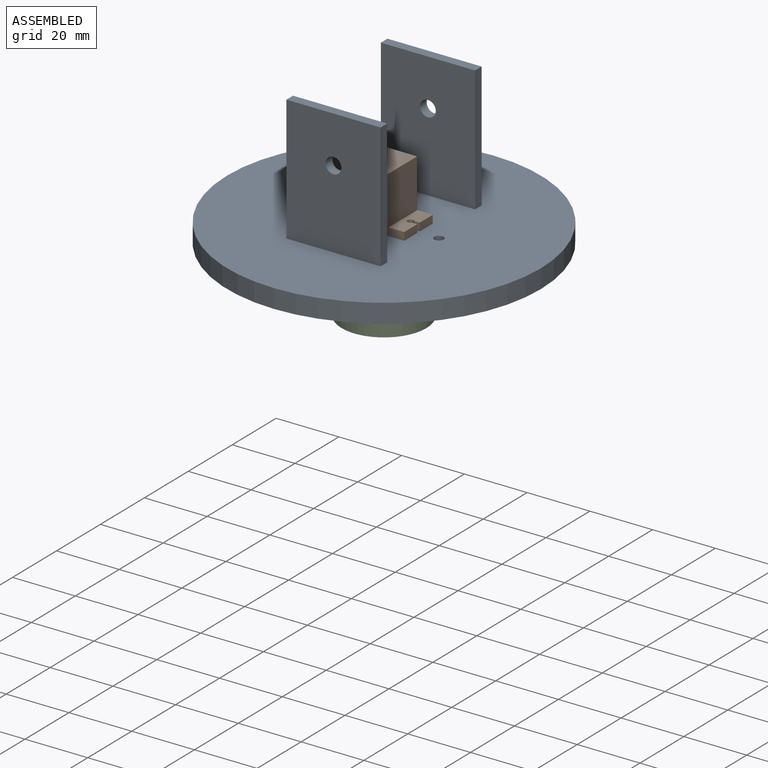
[diagram: assembled view]
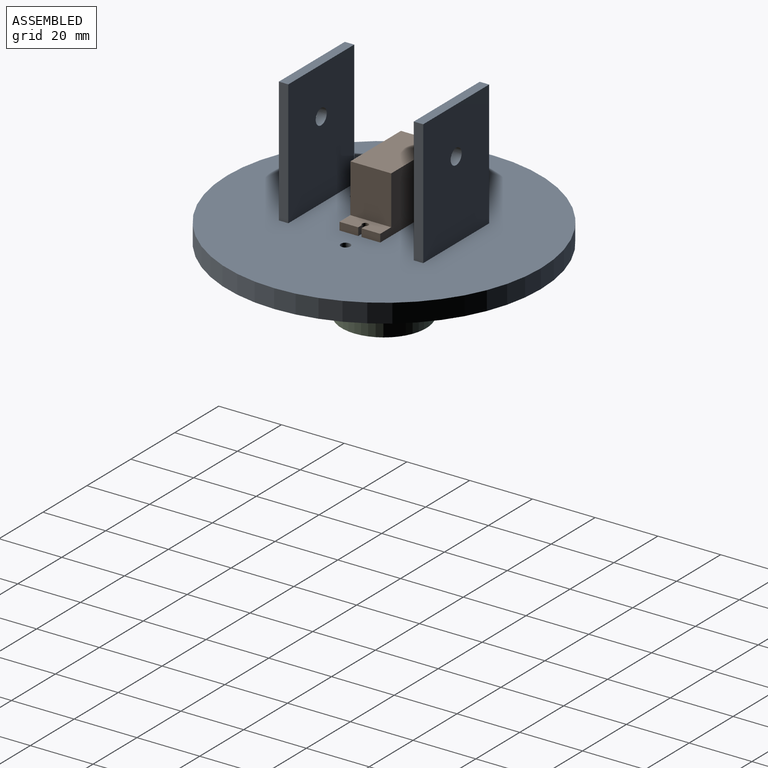
[diagram: assembled view, second angle]
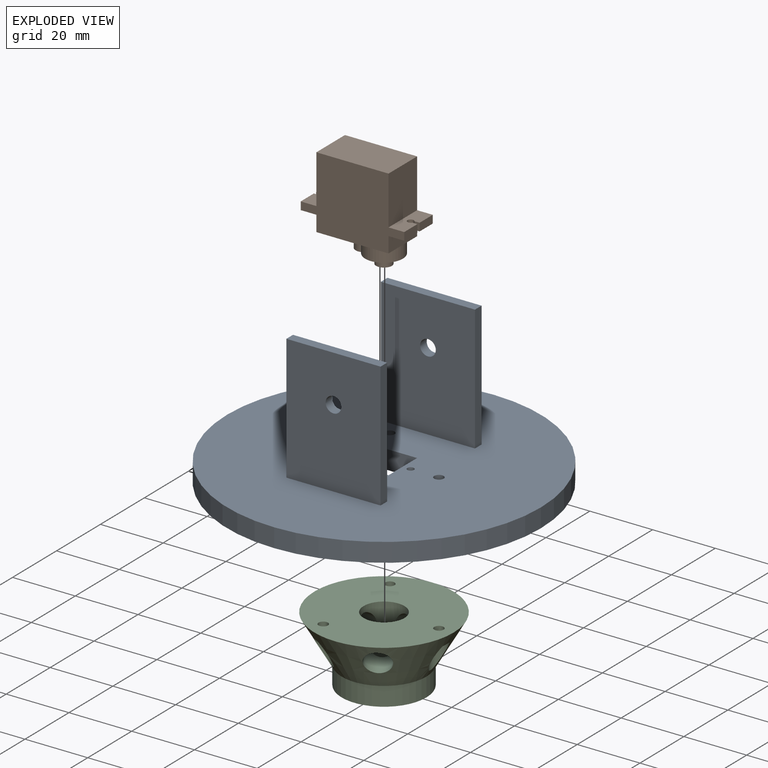
[diagram: exploded view]
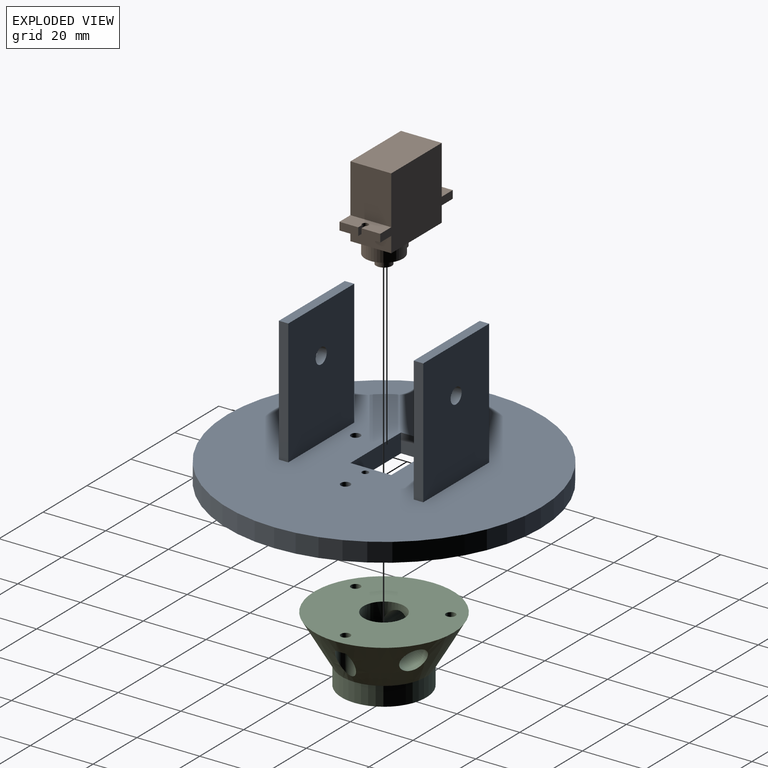
[diagram: exploded view, second angle]
ASSEMBLY  parts=3 mates=2
PART A: 24 faces, bbox 100x100x46 mm
  f0: plane 100x100mm, normal (0,0,1), area 7346.8mm2, adj f1,f3,f4,f5,f6,f7,f8,f9
  f1: cylinder r=50mm len=100mm, axis (0,0,-1), area 1885mm2, adj f0,f2
  f2: plane 100x100mm, normal (0,0,-1), area 7526.8mm2, adj f1,f3,f4,f5,f6,f7,f8,f9
  f3: cylinder r=1.05mm len=6mm, axis (0,0,1), area 39.6mm2, adj f0,f2
  f4: cylinder r=1.5mm len=6mm, axis (0,0,1), area 56.5mm2, adj f0,f2
  f5: cylinder r=1.5mm len=6mm, axis (0,0,1), area 56.5mm2, adj f0,f2
  f6: cylinder r=1.5mm len=6mm, axis (0,0,1), area 56.5mm2, adj f0,f2
  f7: plane 23x6mm, normal (0,-1,0), area 138mm2, adj f0,f2,f8,f10
  f8: plane 13x6mm, normal (-1,0,0), area 78mm2, adj f0,f2,f7,f9
  f9: plane 23x6mm, normal (0,1,0), area 138mm2, adj f0,f2,f8,f10
  f10: plane 13x6mm, normal (1,0,0), area 78mm2, adj f0,f2,f7,f9
  f11: cylinder r=1.05mm len=6mm, axis (0,0,1), area 39.6mm2, adj f0,f2
  f12: plane 40x3mm, normal (-1,0,0), area 120mm2, adj f0,f13,f15,f16
  f13: plane 40x30mm, normal (0,-1,0), area 1180.4mm2, adj f0,f12,f14,f16,f23
  f14: plane 40x3mm, normal (1,0,0), area 120mm2, adj f0,f13,f15,f16
  f15: plane 40x30mm, normal (0,1,0), area 1180.4mm2, adj f0,f12,f14,f16,f23
  f16: plane 30x3mm, normal (0,0,1), area 90mm2, adj f12,f13,f14,f15
  f17: plane 40x3mm, normal (-1,0,0), area 120mm2, adj f0,f18,f20,f21
  f18: plane 40x30mm, normal (0,1,0), area 1180.4mm2, adj f0,f17,f19,f21,f22
  f19: plane 40x3mm, normal (1,0,0), area 120mm2, adj f0,f18,f20,f21
  f20: plane 40x30mm, normal (0,-1,0), area 1180.4mm2, adj f0,f17,f19,f21,f22
  f21: plane 30x3mm, normal (0,0,1), area 90mm2, adj f17,f18,f19,f20
  f22: cylinder r=2.5mm len=5mm, axis (0,1,0), area 47.1mm2, adj f18,f20
  f23: cylinder r=2.5mm len=5mm, axis (0,1,0), area 47.1mm2, adj f13,f15
PART B: 27 faces, bbox 33x30x13 mm
  f0: plane 13x5mm, normal (-1,0,0), area 65mm2, adj f3,f5,f6,f20
  f1: plane 15.5x13mm, normal (1,0,0), area 201.5mm2, adj f3,f5,f7,f14
  f2: plane 15.5x13mm, normal (-1,0,0), area 201.5mm2, adj f3,f5,f7,f21
  f3: plane 33x23mm, normal (0,0,-1), area 554mm2, adj f0,f1,f2,f4,f6,f7,f12,f13
  f4: plane 13x5mm, normal (1,0,0), area 65mm2, adj f3,f5,f6,f13
  f5: plane 33x23mm, normal (0,0,1), area 554mm2, adj f0,f1,f2,f4,f6,f7,f11,f13
  f6: plane 23x13mm, normal (0,-1,0), area 170.3mm2, adj f0,f3,f4,f5,f22,f23
  f7: plane 23x13mm, normal (0,1,0), area 299mm2, adj f1,f2,f3,f5
  f8: plane 2.5x1.64mm, normal (0,0,1), area 4.1mm2, adj f9,f12,f13,f14
  f9: cylinder r=1mm len=2.5mm, axis (0,1,0), area 13mm2, adj f8,f10,f13,f14
  f10: plane 2.5x1.64mm, normal (0,0,-1), area 4.1mm2, adj f9,f11,f13,f14
  f11: plane 5.99x2.5mm, normal (1,0,0), area 15mm2, adj f5,f10,f13,f14
  f12: plane 5.99x2.5mm, normal (1,0,0), area 15mm2, adj f3,f8,f13,f14
  f13: plane 13x5mm, normal (0,-1,0), area 60.3mm2, adj f3,f4,f5,f8,f9,f10,f11,f12
  f14: plane 13x5mm, normal (0,1,0), area 60.3mm2, adj f1,f3,f5,f8,f9,f10,f11,f12
  f15: plane 2.5x1.64mm, normal (0,0,1), area 4.1mm2, adj f16,f19,f20,f21
  f16: cylinder r=1mm len=2.5mm, axis (0,1,0), area 13mm2, adj f15,f17,f20,f21
  f17: plane 2.5x1.64mm, normal (0,0,-1), area 4.1mm2, adj f16,f18,f20,f21
  f18: plane 5.99x2.5mm, normal (-1,0,0), area 15mm2, adj f5,f17,f20,f21
  f19: plane 5.99x2.5mm, normal (-1,0,0), area 15mm2, adj f3,f15,f20,f21
  f20: plane 13x5mm, normal (0,-1,0), area 60.3mm2, adj f0,f3,f5,f15,f16,f17,f18,f19
  f21: plane 13x5mm, normal (0,1,0), area 60.3mm2, adj f2,f3,f5,f15,f16,f17,f18,f19
  f22: cylinder r=6mm len=12mm, axis (0,1,0), area 126.5mm2, adj f6,f23,f24
  f23: cylinder r=3mm len=6mm, axis (0,1,0), area 43.8mm2, adj f6,f22,f24
  f24: plane 15x12mm, normal (0,-1,0), area 109.1mm2, adj f22,f23,f26
  f25: plane 5x5mm, normal (0,-1,0), area 19.6mm2, adj f26
  f26: cylinder r=2.5mm len=5mm, axis (0,1,0), area 47.1mm2, adj f24,f25
PART C: 19 faces, bbox 44.3x44.3x21 mm
  f0: cylinder r=4mm len=17.76mm, axis (-0.5,-0.87,0), area 317.9mm2, adj f6,f8
  f1: cylinder r=4mm len=17.76mm, axis (-0.5,0.87,0), area 317.9mm2, adj f6,f8
  f2: cylinder r=9.5mm len=19mm, axis (0,0,-1), area 358.1mm2, adj f4,f5
  f3: cylinder r=13.5mm len=27mm, axis (0,0,-1), area 508.9mm2, adj f4,f6
  f4: plane 27x27mm, normal (0,0,-1), area 289mm2, adj f2,f3
  f5: plane 19x19mm, normal (0,0,-1), area 150.8mm2, adj f2,f8
  f6: cone r=13.5mm half-angle=30deg, axis (0,0,1), area 1626.5mm2, adj f0,f1,f3,f7,f12,f13,f14,f15
  f7: plane 44.32x44.32mm, normal (0,0,1), area 1388.8mm2, adj f6,f8,f9,f10,f11
  f8: cylinder r=6.5mm len=15mm, axis (0,0,-1), area 453.3mm2, adj f0,f1,f5,f7,f18
  f9: cylinder r=1.5mm len=4mm, axis (0,0,-1), area 37.7mm2, adj f7,f17
  f10: cylinder r=1.5mm len=4mm, axis (0,0,-1), area 37.7mm2, adj f7,f15
  f11: cylinder r=1.5mm len=4mm, axis (0,0,-1), area 37.7mm2, adj f7,f13
  f12: cylinder r=2.75mm len=8.84mm, axis (0,0,-1), area 68.6mm2, adj f6,f13
  f13: plane 5.5x5.1mm, normal (0,0,-1), area 15.9mm2, adj f6,f11,f12
  f14: cylinder r=2.75mm len=8.84mm, axis (0,0,-1), area 68.6mm2, adj f6,f15
  f15: plane 5.5x5.5mm, normal (0,0,-1), area 15.9mm2, adj f6,f10,f14
  f16: cylinder r=2.75mm len=8.84mm, axis (0,0,-1), area 68.6mm2, adj f6,f17
  f17: plane 5.5x5.5mm, normal (0,0,-1), area 15.9mm2, adj f6,f9,f16
  f18: cylinder r=4mm len=15.88mm, axis (1,0,0), area 317.9mm2, adj f6,f8
PLACE A t=(0.47,-2.93,38.9)mm
PLACE B rot(axis=(0,0.71,0.71),180deg) t=(-5.03,-2.93,62.9)mm
PLACE C t=(0.47,-2.93,17.9)mm fixed
MATE fastened C.f3 <-> A.f1  axis (0,0,1) through (0.47,-2.93,38.9)mm
MATE fastened B.f16 <-> A.f3  axis (0,0,-1) through (8.97,-2.93,44.9)mm
